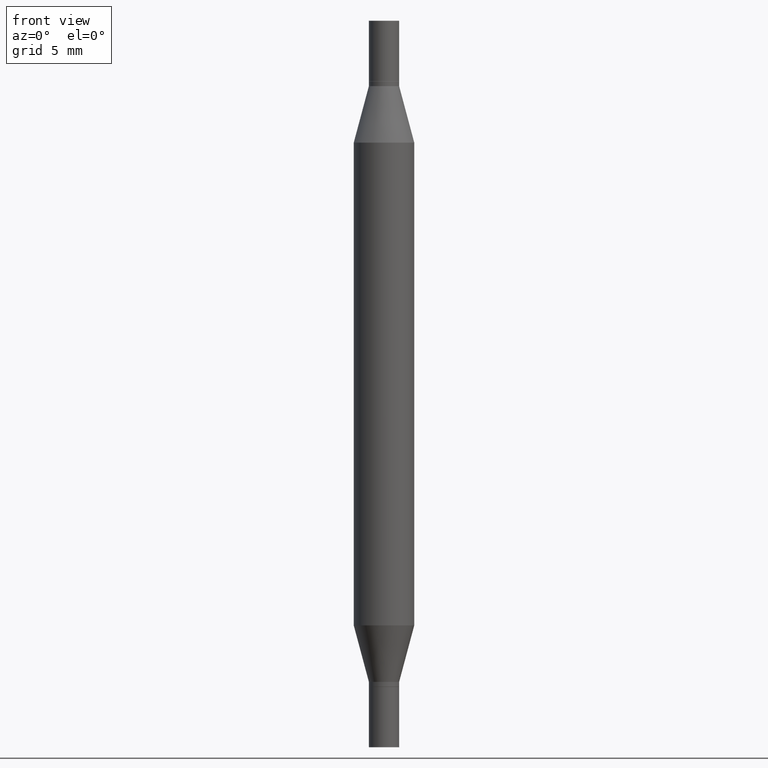
[diagram: clean part render]
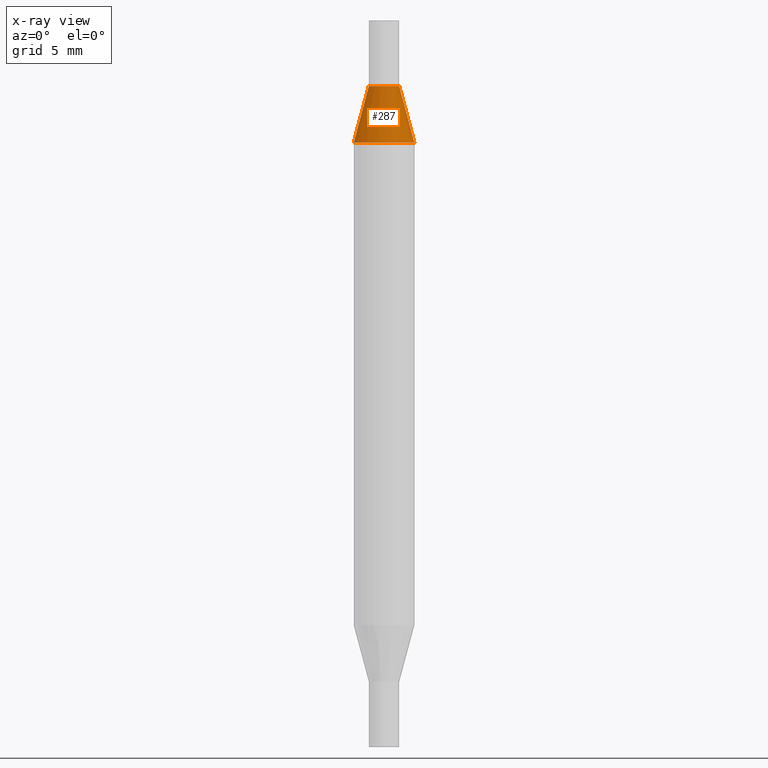
[diagram: x-ray — body ghosted, one internal face saturated and labeled with its STEP entity id]
A machine part, front view, then the same camera in x-ray: the body is ghosted and one INTERNAL B-rep face — a face not visible from any outside direction — is saturated and labeled: STEP entity #287.
In plain terms, the highlighted conical surface has half-angle 15 deg.
Its self-contained STEP definition (entity closure, byte-faithful):
#37 = ORIENTED_EDGE ( 'NONE', *, *, #704, .F. ) ;
#39 = DIRECTION ( 'NONE',  ( 1.000000000000000000, -6.982962677686266711E-15, 0.000000000000000000 ) ) ;
#81 = CONICAL_SURFACE ( 'NONE', #209, 0.03124999999999992367, 0.2617993877991511287 ) ;
#84 = VECTOR ( 'NONE', #147, 39.37007874015748143 ) ;
#102 = CIRCLE ( 'NONE', #874, 0.03124999999999992367 ) ;
#131 = DIRECTION ( 'NONE',  ( 1.000000000000000000, -6.982962677686265133E-15, 0.000000000000000000 ) ) ;
#147 = DIRECTION ( 'NONE',  ( -0.2588190451025224048, -1.597197180879706043E-15, -0.9659258262890678681 ) ) ;
#149 = EDGE_LOOP ( 'NONE', ( #37, #302, #488, #424 ) ) ;
#191 = DIRECTION ( 'NONE',  ( 2.445468806185136597E-29, 3.491805094961124077E-15, 1.000000000000000000 ) ) ;
#209 = AXIS2_PLACEMENT_3D ( 'NONE', #448, #779, #758 ) ;
#217 = EDGE_CURVE ( 'NONE', #332, #895, #952, .T. ) ;
#223 = CARTESIAN_POINT ( 'NONE',  ( -0.03124999999999992367, -2.567603083009074019E-16, -0.1349999999999997868 ) ) ;
#233 = LINE ( 'NONE', #223, #84 ) ;
#257 = VERTEX_POINT ( 'NONE', #508 ) ;
#287 = ADVANCED_FACE ( 'NONE', ( #968 ), #81, .T. ) ;
#302 = ORIENTED_EDGE ( 'NONE', *, *, #375, .T. ) ;
#310 = CARTESIAN_POINT ( 'NONE',  ( 0.03124999999999992367, -6.893684544089624146E-16, -0.1349999999999997868 ) ) ;
#332 = VERTEX_POINT ( 'NONE', #310 ) ;
#335 = CARTESIAN_POINT ( 'NONE',  ( 3.052858238161220135E-29, -8.783881839976021314E-16, -0.2516265877365266856 ) ) ;
#357 = VECTOR ( 'NONE', #654, 39.37007874015748143 ) ;
#367 = CARTESIAN_POINT ( 'NONE',  ( 0.06250000000000000000, -1.314823351352993998E-15, -0.2516265877365266856 ) ) ;
#375 = EDGE_CURVE ( 'NONE', #257, #786, #233, .T. ) ;
#424 = ORIENTED_EDGE ( 'NONE', *, *, #217, .F. ) ;
#448 = CARTESIAN_POINT ( 'NONE',  ( 3.338064920442711275E-29, -4.711508707312672701E-16, -0.1349999999999997868 ) ) ;
#488 = ORIENTED_EDGE ( 'NONE', *, *, #590, .T. ) ;
#508 = CARTESIAN_POINT ( 'NONE',  ( -0.03124999999999992367, -2.401742340998409702E-16, -0.1349999999999997868 ) ) ;
#546 = AXIS2_PLACEMENT_3D ( 'NONE', #335, #788, #39 ) ;
#590 = EDGE_CURVE ( 'NONE', #786, #895, #904, .T. ) ;
#654 = DIRECTION ( 'NONE',  ( 0.2588190451025224048, -5.180148453816013512E-15, -0.9659258262890678681 ) ) ;
#704 = EDGE_CURVE ( 'NONE', #257, #332, #102, .T. ) ;
#727 = CARTESIAN_POINT ( 'NONE',  ( 0.03124999999999992367, -6.893684544089624146E-16, -0.1349999999999997868 ) ) ;
#736 = CARTESIAN_POINT ( 'NONE',  ( -0.06250000000000000000, -4.496070591368817046E-16, -0.2516265877365266856 ) ) ;
#758 = DIRECTION ( 'NONE',  ( 1.000000000000000000, -6.982962677686265133E-15, 0.000000000000000000 ) ) ;
#779 = DIRECTION ( 'NONE',  ( -2.445468806185136597E-29, -3.491805094961124077E-15, -1.000000000000000000 ) ) ;
#786 = VERTEX_POINT ( 'NONE', #736 ) ;
#788 = DIRECTION ( 'NONE',  ( 2.445468806185136597E-29, 3.491805094961124077E-15, 1.000000000000000000 ) ) ;
#874 = AXIS2_PLACEMENT_3D ( 'NONE', #973, #191, #131 ) ;
#895 = VERTEX_POINT ( 'NONE', #367 ) ;
#904 = CIRCLE ( 'NONE', #546, 0.06250000000000000000 ) ;
#952 = LINE ( 'NONE', #727, #357 ) ;
#968 = FACE_OUTER_BOUND ( 'NONE', #149, .T. ) ;
#973 = CARTESIAN_POINT ( 'NONE',  ( 3.338064920442711275E-29, -4.711508707312672701E-16, -0.1349999999999997868 ) ) ;